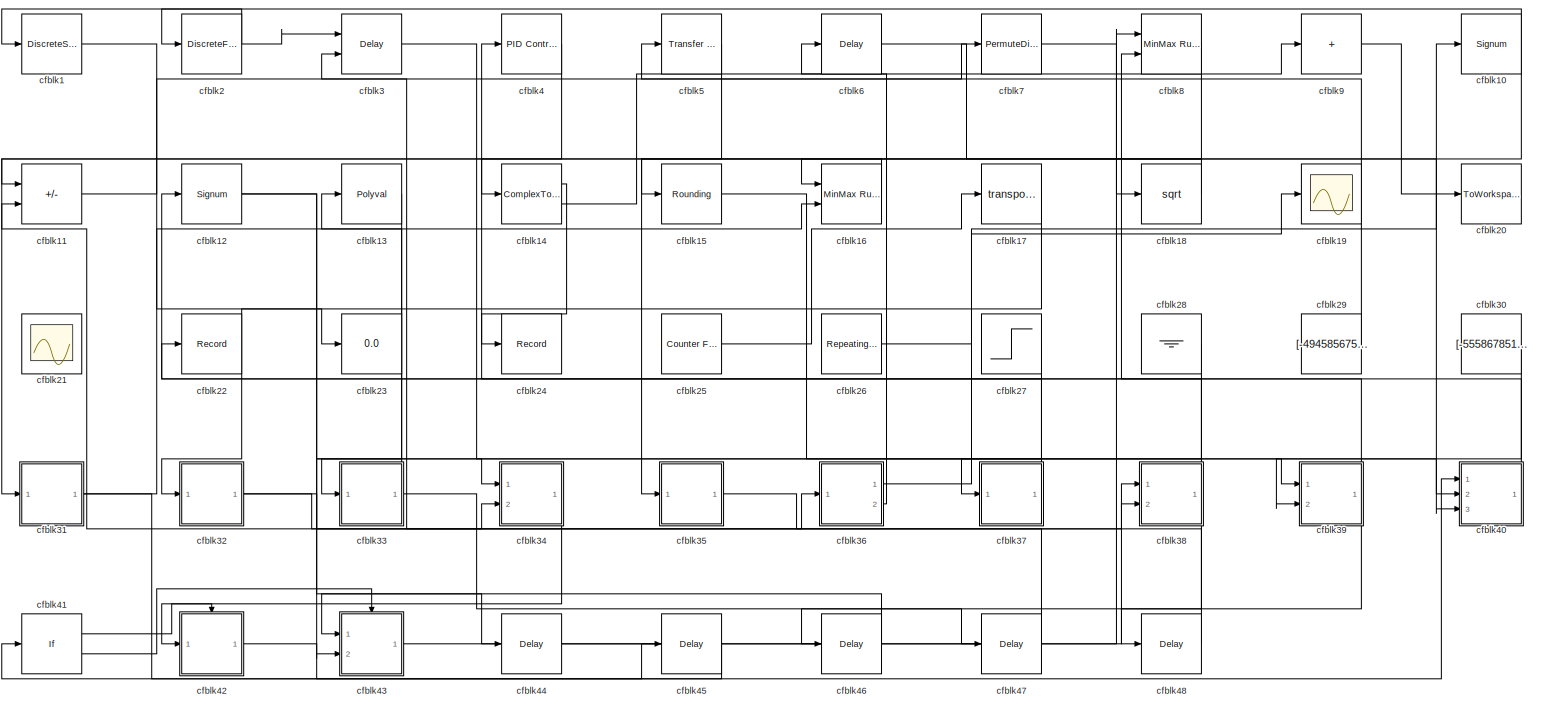
[diagram: root canvas - part 1/1, most of the canvas]
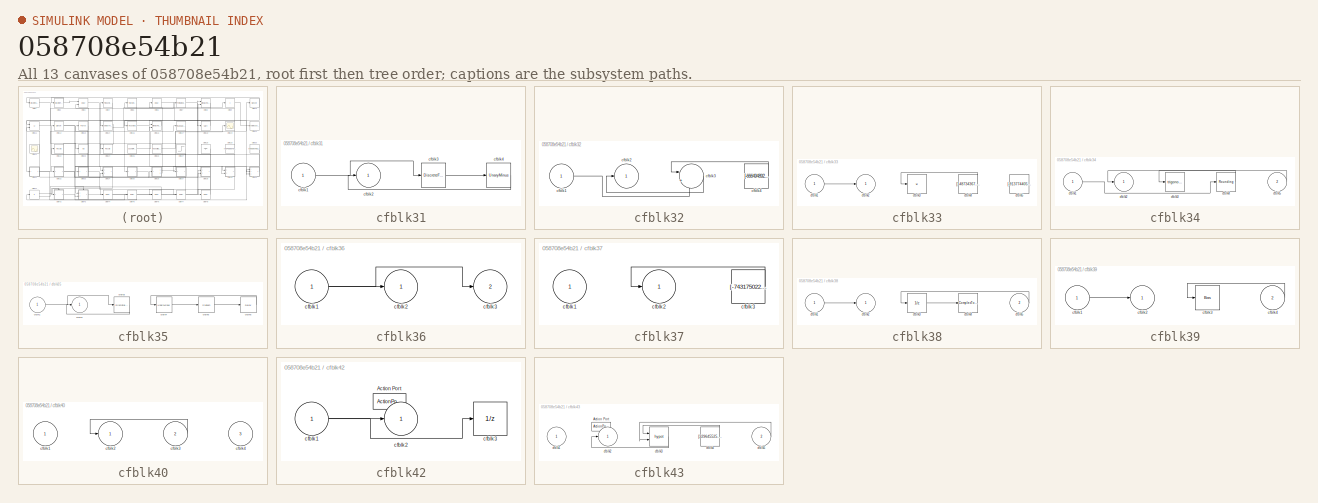
[diagram: thumbnail index - all 13 canvases of the model, root first then tree order]
MODEL slx_058708e54b21
KIND model
CONFIG AbsTol = auto
CONFIG EnableMultiTasking = off
CONFIG FixedStep = auto
CONFIG MaxStep = auto
CONFIG MinStep = auto
CONFIG RelTol = 1e-3
CONFIG SampleTimeConstraint = Unconstrained
CONFIG SolverName = VariableStepAuto
CONFIG StartTime = 0.0
CONFIG StopTime = 10.0
BLOCK [DiscreteStateSpace] cfblk1
BLOCK [Signum] cfblk10
BLOCK [Sum] cfblk11
  IconShape = rectangular
  Inputs = --
  Ports = [2, 1]
BLOCK [Signum] cfblk12
BLOCK [Polyval] cfblk13
  Coefs = [ +2.081618890e-019, -1.441693666e-014, +4.719686976e-010, -8.536869453e-006, +1.621573104e-001, -8.087801117e+001 ]
BLOCK [ComplexToMagnitudeAngle] cfblk14
  Ports = [1, 2]
BLOCK [Rounding] cfblk15
BLOCK [Reference] cfblk16  REF=simulink/Math
Operations/MinMax
Running
Resettable
  Ports = [2, 1]
  SourceBlock = simulink/Math\nOperations/MinMax\nRunning\nResettable
  SourceProductBaseCode = SL
  SourceType = MinMax Running Resettable
BLOCK [Math] cfblk17
  Operator = transpose
  Ports = [1, 1]
BLOCK [Sqrt] cfblk18
BLOCK [Scope] cfblk19
  Floating = off
  NumInputPorts = 1
  Ports = [1]
BLOCK [DiscreteFir] cfblk2
  InputPortMap = u0
  OutputPortMap = o0
  Ports = [1, 1]
  SampleTime = 1
BLOCK [ToWorkspace] cfblk20
  FixptAsFi = on
  MaxDataPoints = inf
  Ports = [1]
  SampleTime = -1
  SaveFormat = Timeseries
  VariableName = nbgxjiw
BLOCK [Scope] cfblk21
  Floating = on
  NumInputPorts = 1
  Ports = []
BLOCK [Record] cfblk22
  FileSettingsInternal = {"entries":[{"content":{"excelSettings":{"content":{},"type":"Streamout.ExcelSettings"}},"type":"Streamout.FileSettingStorage","uuid":"fd740401-2b8e-40f4-899f-90ca964aec60"}],"packageUris":["http://schema.mathworks.com/mf0/streamout_blocks/R2020a"],"version":"1.0"}
  Ports = [1]
  SignalsInternal = {"entries":[{"content":{"signals":[{"content":{"blockPath":["sampleModel121/cfblk22"],"channel":[],"dimensions":[1],"domain":"sampleModel121/cfblk22","lineColor":"#a2142f","plots":[1],"port":1,"sid":[""],"signalID":4227,"signalName":"cfblk33"},"type":"RecordBlkView.Signal","uuid":"5daead5c-1d5e-454e-a752-94514f76c39d"}]},"type":"RecordBlkView.InputSignals","uuid":"386915b9-b9f9-42da-b1ef-b10f4c0e1...<+97ch>
  VisualizationBindings = {"sparklinesplugin":{"info":[{"bindingParametersList":[],"subplotID":1}]}}
BLOCK [Display] cfblk23
  Decimation = 1
  Ports = [1]
BLOCK [Record] cfblk24
  FileSettingsInternal = {"entries":[{"content":{"excelSettings":{"content":{},"type":"Streamout.ExcelSettings"}},"type":"Streamout.FileSettingStorage","uuid":"1580d6fb-15e4-47d5-8716-256e97cdfb47"}],"packageUris":["http://schema.mathworks.com/mf0/streamout_blocks/R2020a"],"version":"1.0"}
  Ports = [1]
  SignalsInternal = {"entries":[{"content":{"signals":[{"content":{"blockPath":["sampleModel121/cfblk24"],"channel":[],"dimensions":[1],"domain":"sampleModel121/cfblk24","lineColor":"#139fff","plots":[1],"port":1,"sid":[""],"signalID":4231,"signalName":"cfblk14:1"},"type":"RecordBlkView.Signal","uuid":"eec9c35d-0f74-409a-8959-3dd03e3b2eaf"}]},"type":"RecordBlkView.InputSignals","uuid":"52b8c401-7b59-45f7-a67f-61b4681...<+99ch>
  VisualizationBindings = {"sparklinesplugin":{"info":[{"bindingParametersList":[],"subplotID":1}]}}
BLOCK [Reference] cfblk25  REF=simulink/Sources/Counter
Free-Running
  Ports = [0, 1]
  SourceBlock = simulink/Sources/Counter\nFree-Running
  SourceProductBaseCode = SL
  SourceType = Counter Free-Running
BLOCK [Reference] cfblk26  REF=simulink/Sources/Repeating
Sequence
Interpolated
  Ports = [0, 1]
  SourceBlock = simulink/Sources/Repeating\nSequence\nInterpolated
  SourceProductBaseCode = SL
  SourceType = Repeating Sequence Interpolated
BLOCK [Step] cfblk27
  After = [-189163738.160871]
  Before = [870636847.676478]
  SampleTime = 0
  Time = [46.000000]
BLOCK [Ground] cfblk28
BLOCK [Constant] cfblk29
  SampleTime = 1
  Value = [-494585675.248531]
BLOCK [Delay] cfblk3
  DelayLengthSource = Input port
  InputPortMap = u0,p1
  Ports = [2, 1]
  SampleTime = 1
BLOCK [Constant] cfblk30
  SampleTime = 1
  Value = [-555867851.438545]
BLOCK [SubSystem] cfblk31
  Ports = [1, 1]
  RequestExecContextInheritance = off
BLOCK [Inport] cfblk31/cfblk1
BLOCK [Outport] cfblk31/cfblk2
BLOCK [DiscreteFir] cfblk31/cfblk3
  InputPortMap = u0
  OutputPortMap = o0
  Ports = [1, 1]
  SampleTime = 1
BLOCK [UnaryMinus] cfblk31/cfblk4
BLOCK [SubSystem] cfblk32
  Ports = [1, 1]
  RequestExecContextInheritance = off
BLOCK [Inport] cfblk32/cfblk1
BLOCK [Outport] cfblk32/cfblk2
BLOCK [Sum] cfblk32/cfblk3
  Inputs = |++
  Ports = [2, 1]
BLOCK [Constant] cfblk32/cfblk4
  SampleTime = 1
  Value = [-666494892.316611]
BLOCK [SubSystem] cfblk33
  Ports = [1, 1]
  RequestExecContextInheritance = off
BLOCK [Inport] cfblk33/cfblk1
BLOCK [Outport] cfblk33/cfblk2
BLOCK [Product] cfblk33/cfblk3
  Inputs = *
  Ports = [1, 1]
BLOCK [Constant] cfblk33/cfblk4
  SampleTime = 1
  Value = [148734367.578916]
BLOCK [Constant] cfblk33/cfblk5
  SampleTime = 1
  Value = [-913774405.508566]
BLOCK [SubSystem] cfblk34
  Ports = [2, 1]
  RequestExecContextInheritance = off
BLOCK [Inport] cfblk34/cfblk1
BLOCK [Outport] cfblk34/cfblk2
BLOCK [Trigonometry] cfblk34/cfblk3
  Ports = [1, 1]
BLOCK [Rounding] cfblk34/cfblk4
BLOCK [Inport] cfblk34/cfblk5
  Port = 2
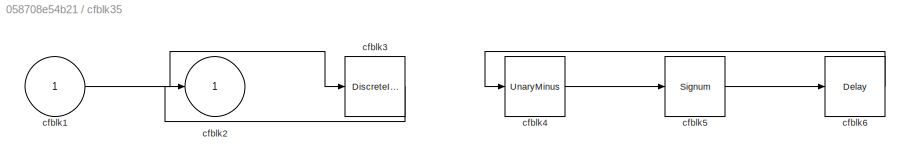
BLOCK [SubSystem] cfblk35
  Ports = [1, 1]
  RequestExecContextInheritance = off
BLOCK [Inport] cfblk35/cfblk1
BLOCK [Outport] cfblk35/cfblk2
BLOCK [DiscreteIntegrator] cfblk35/cfblk3
  ICPrevOutput = DiscIntNeverNeededParam
  ICPrevScaledInput = DiscIntNeverNeededParam
  InitialConditionSetting = Auto
  Ports = [1, 1]
BLOCK [UnaryMinus] cfblk35/cfblk4
BLOCK [Signum] cfblk35/cfblk5
BLOCK [Delay] cfblk35/cfblk6
  InputPortMap = u0
  Ports = [1, 1]
  SampleTime = 1
BLOCK [SubSystem] cfblk36
  Ports = [1, 2]
  RequestExecContextInheritance = off
BLOCK [Inport] cfblk36/cfblk1
BLOCK [Outport] cfblk36/cfblk2
BLOCK [Outport] cfblk36/cfblk3
  Port = 2
BLOCK [SubSystem] cfblk37
  Ports = [1, 1]
  RequestExecContextInheritance = off
BLOCK [Inport] cfblk37/cfblk1
BLOCK [Outport] cfblk37/cfblk2
BLOCK [Constant] cfblk37/cfblk3
  SampleTime = 1
  Value = [-743175022.866624]
BLOCK [SubSystem] cfblk38
  Ports = [2, 1]
  RequestExecContextInheritance = off
BLOCK [Inport] cfblk38/cfblk1
BLOCK [Outport] cfblk38/cfblk2
BLOCK [UnitDelay] cfblk38/cfblk3
  HasFrameUpgradeWarning = on
BLOCK [ComplexToMagnitudeAngle] cfblk38/cfblk4
  Ports = [1, 2]
BLOCK [Inport] cfblk38/cfblk5
  Port = 2
BLOCK [SubSystem] cfblk39
  Ports = [2, 1]
  RequestExecContextInheritance = off
BLOCK [Inport] cfblk39/cfblk1
BLOCK [Outport] cfblk39/cfblk2
BLOCK [Bias] cfblk39/cfblk3
  Bias = [389614385.824920]
  SaturateOnIntegerOverflow = off
BLOCK [Inport] cfblk39/cfblk4
  Port = 2
BLOCK [Reference] cfblk4  REF=slpidlib/PID Controller
  Ports = [1, 1]
  SourceBlock = slpidlib/PID Controller
  SourceProductBaseCode = SL
  SourceType = PID 1dof
BLOCK [SubSystem] cfblk40
  Ports = [3, 1]
  RequestExecContextInheritance = off
BLOCK [Inport] cfblk40/cfblk1
BLOCK [Outport] cfblk40/cfblk2
BLOCK [Inport] cfblk40/cfblk3
  Port = 2
BLOCK [Inport] cfblk40/cfblk4
  Port = 3
BLOCK [If] cfblk41
  IfExpression = u1 >= 0
  Ports = [1, 2]
  SampleTime = 1
BLOCK [SubSystem] cfblk42
  Ports = [1, 1, 0, 0, 0, 0, 0, 1]
  RequestExecContextInheritance = off
  TreatAsAtomicUnit = on
BLOCK [ActionPort] cfblk42/Action Port
  ActionPortLabel = if(u1 >= 0)
BLOCK [Inport] cfblk42/cfblk1
BLOCK [Outport] cfblk42/cfblk2
BLOCK [UnitDelay] cfblk42/cfblk3
  HasFrameUpgradeWarning = on
  SampleTime = -1
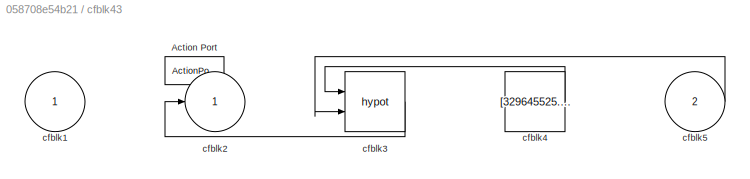
BLOCK [SubSystem] cfblk43
  Ports = [2, 1, 0, 0, 0, 0, 0, 1]
  RequestExecContextInheritance = off
  TreatAsAtomicUnit = on
BLOCK [ActionPort] cfblk43/Action Port
  ActionPortLabel = else
BLOCK [Inport] cfblk43/cfblk1
BLOCK [Outport] cfblk43/cfblk2
BLOCK [Math] cfblk43/cfblk3
  Operator = hypot
  Ports = [2, 1]
BLOCK [Constant] cfblk43/cfblk4
  SampleTime = 1
  Value = [329645525.326642]
BLOCK [Inport] cfblk43/cfblk5
  Port = 2
BLOCK [Delay] cfblk44
  InputPortMap = u0
  Ports = [1, 1]
  SampleTime = 1
BLOCK [Delay] cfblk45
  InputPortMap = u0
  Ports = [1, 1]
  SampleTime = 1
BLOCK [Delay] cfblk46
  InputPortMap = u0
  Ports = [1, 1]
  SampleTime = 1
BLOCK [Delay] cfblk47
  InputPortMap = u0
  Ports = [1, 1]
  SampleTime = 1
BLOCK [Delay] cfblk48
  InputPortMap = u0
  Ports = [1, 1]
  SampleTime = 1
BLOCK [Reference] cfblk5  REF=simulink/Discrete/Transfer Fcn
First Order
  Ports = [1, 1]
  SourceBlock = simulink/Discrete/Transfer Fcn\nFirst Order
  SourceProductBaseCode = SL
  SourceType = First Order Transfer Fcn
BLOCK [Delay] cfblk6
  InputPortMap = u0
  Ports = [1, 1]
  SampleTime = 1
BLOCK [PermuteDimensions] cfblk7
BLOCK [Reference] cfblk8  REF=simulink/Math
Operations/MinMax
Running
Resettable
  Ports = [2, 1]
  SourceBlock = simulink/Math\nOperations/MinMax\nRunning\nResettable
  SourceProductBaseCode = SL
  SourceType = MinMax Running Resettable
BLOCK [Sum] cfblk9
  IconShape = rectangular
  Inputs = +
  Ports = [1, 1]
NET cfblk10:1 -> cfblk16:1, cfblk2:1
LINE cfblk11:1 -> cfblk7:1
NET cfblk12:1 -> cfblk34:1, cfblk44:1
LINE cfblk13:1 -> cfblk33:1
LINE cfblk14:1 -> cfblk24:1
LINE cfblk14:2 -> cfblk9:1
LINE cfblk15:1 -> cfblk40:2
LINE cfblk16:1 -> cfblk15:1
LINE cfblk17:1 -> cfblk32:1
LINE cfblk18:1 -> cfblk31:1
LINE cfblk1:1 -> cfblk23:1
LINE cfblk25:1 -> cfblk17:1
LINE cfblk26:1 -> cfblk10:1
LINE cfblk27:1 -> cfblk43:2
LINE cfblk28:1 -> cfblk37:1
LINE cfblk29:1 -> cfblk5:1
NET cfblk2:1 -> cfblk1:1, cfblk3:1
LINE cfblk30:1 -> cfblk39:2
LINE cfblk31/cfblk1:1 -> cfblk31/cfblk3:1
LINE cfblk31/cfblk3:1 -> cfblk31/cfblk4:1
LINE cfblk31/cfblk4:1 -> cfblk31/cfblk2:1
NET cfblk31:1 -> cfblk16:2, cfblk40:1
LINE cfblk32/cfblk1:1 -> cfblk32/cfblk3:2
LINE cfblk32/cfblk3:1 -> cfblk32/cfblk2:1
LINE cfblk32/cfblk4:1 -> cfblk32/cfblk3:1
NET cfblk32:1 -> cfblk34:2, cfblk36:1
LINE cfblk33/cfblk1:1 -> cfblk33/cfblk2:1
LINE cfblk33/cfblk4:1 -> cfblk33/cfblk3:1
NET cfblk33:1 -> cfblk22:1, cfblk47:1
LINE cfblk34/cfblk1:1 -> cfblk34/cfblk4:1
LINE cfblk34/cfblk4:1 -> cfblk34/cfblk2:1
LINE cfblk34/cfblk5:1 -> cfblk34/cfblk3:1
LINE cfblk34:1 -> cfblk42:1
LINE cfblk35/cfblk1:1 -> cfblk35/cfblk3:1
LINE cfblk35/cfblk3:1 -> cfblk35/cfblk2:1
LINE cfblk35/cfblk4:1 -> cfblk35/cfblk5:1
LINE cfblk35/cfblk5:1 -> cfblk35/cfblk6:1
LINE cfblk35/cfblk6:1 -> cfblk35/cfblk4:1
LINE cfblk35:1 -> cfblk38:2
NET cfblk36/cfblk1:1 -> cfblk36/cfblk2:1, cfblk36/cfblk3:1
LINE cfblk36:1 -> cfblk19:1
LINE cfblk36:2 -> cfblk6:1
LINE cfblk37/cfblk3:1 -> cfblk37/cfblk2:1
LINE cfblk37:1 -> cfblk4:1
LINE cfblk38/cfblk1:1 -> cfblk38/cfblk2:1
LINE cfblk38/cfblk3:1 -> cfblk38/cfblk4:1
LINE cfblk38/cfblk5:1 -> cfblk38/cfblk3:1
NET cfblk38:1 -> cfblk13:1, cfblk46:1
LINE cfblk39/cfblk1:1 -> cfblk39/cfblk2:1
LINE cfblk39/cfblk4:1 -> cfblk39/cfblk3:1
NET cfblk39:1 -> cfblk48:1, cfblk8:2
LINE cfblk3:1 -> cfblk39:1
LINE cfblk40/cfblk3:1 -> cfblk40/cfblk2:1
LINE cfblk40:1 -> cfblk12:1
LINE cfblk41:1 -> cfblk42:ifaction
LINE cfblk41:2 -> cfblk43:ifaction
NET cfblk42/cfblk1:1 -> cfblk42/cfblk2:1, cfblk42/cfblk3:1
LINE cfblk42:1 -> cfblk45:1
LINE cfblk43/cfblk3:1 -> cfblk43/cfblk2:1
LINE cfblk43/cfblk4:1 -> cfblk43/cfblk3:1
LINE cfblk43/cfblk5:1 -> cfblk43/cfblk3:2
LINE cfblk43:1 -> cfblk38:1
LINE cfblk44:1 -> cfblk8:1
LINE cfblk45:1 -> cfblk41:1
LINE cfblk46:1 -> cfblk43:1
LINE cfblk47:1 -> cfblk11:2
LINE cfblk48:1 -> cfblk3:2
LINE cfblk4:1 -> cfblk14:1
LINE cfblk5:1 -> cfblk35:1
LINE cfblk6:1 -> cfblk40:3
LINE cfblk7:1 -> cfblk18:1
LINE cfblk8:1 -> cfblk11:1
LINE cfblk9:1 -> cfblk20:1
note: NET lines group one-source signal fan-out (src -> all destinations, sorted); 1:1 wires keep LINE
